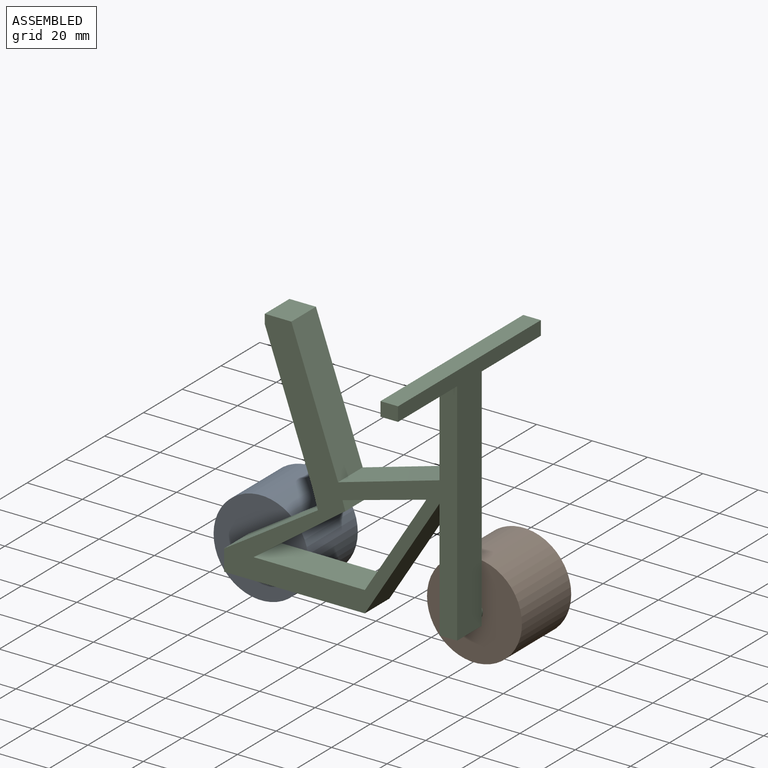
[diagram: assembled view]
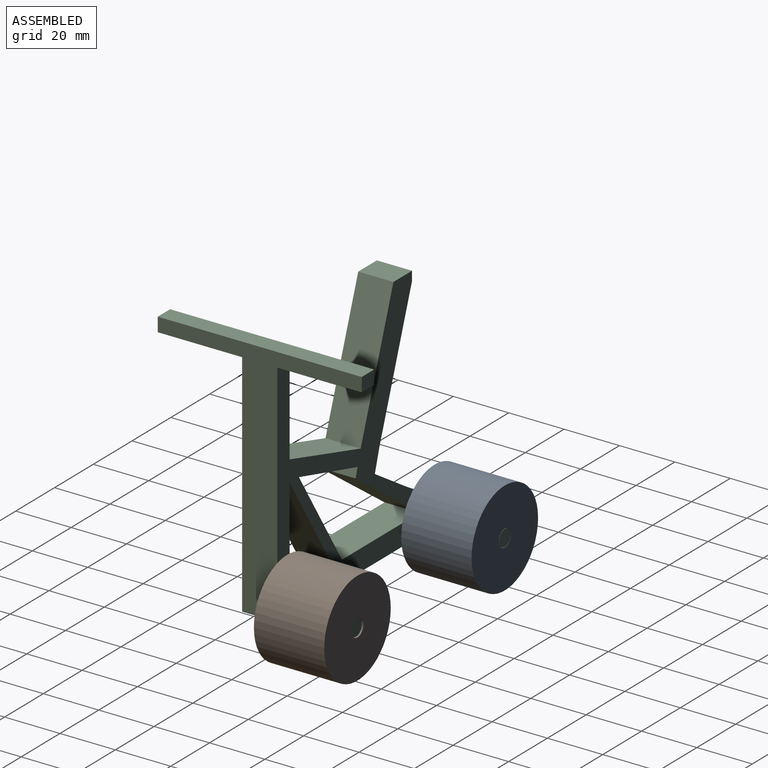
[diagram: assembled view, second angle]
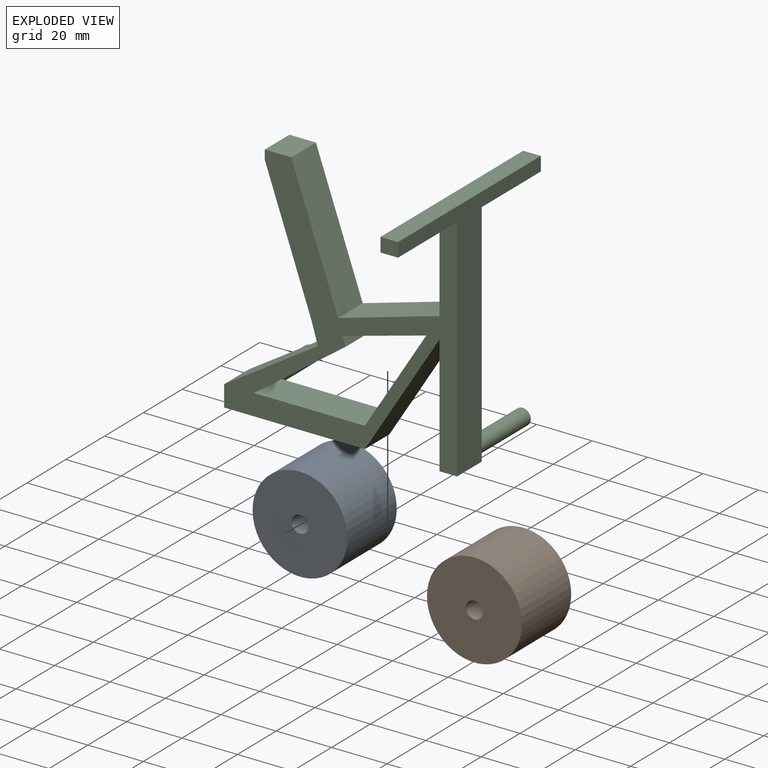
[diagram: exploded view]
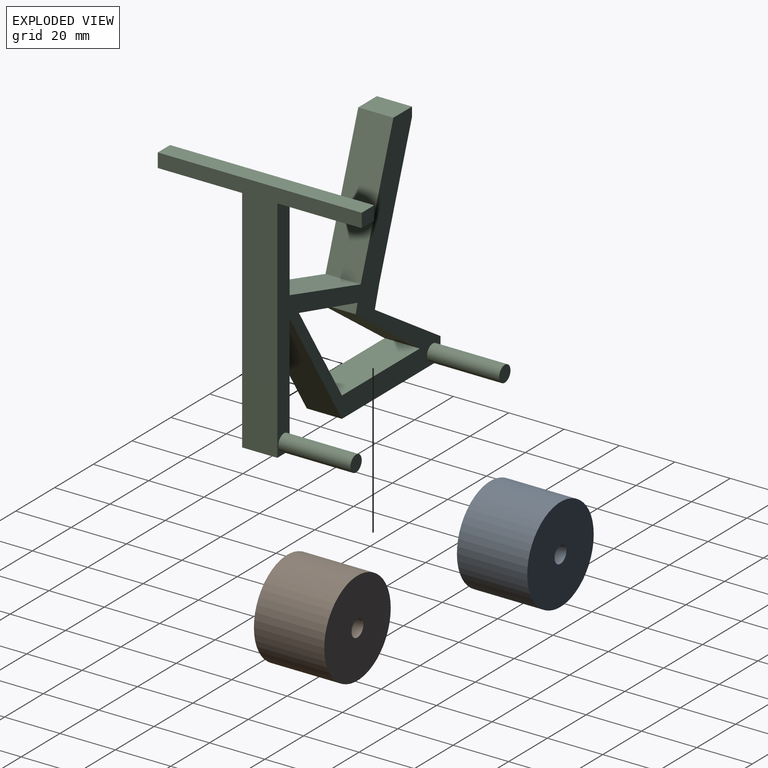
[diagram: exploded view, second angle]
ASSEMBLY  parts=3 mates=2
PART A: 4 faces, bbox 34.3x25.4x34.3 mm
  f0: cylinder r=3.05mm len=25.4mm, axis (0,1,0), area 486.4mm2, adj f2,f3
  f1: cylinder r=17.14mm len=34.29mm, axis (0,1,0), area 2736.2mm2, adj f2,f3
  f2: plane 34.29x34.29mm, normal (0,-1,0), area 894.3mm2, adj f0,f1
  f3: plane 34.29x34.29mm, normal (0,1,0), area 894.3mm2, adj f0,f1
PART B: same geometry as A
PART C: 30 faces, bbox 84.1x73.7x88.1 mm
  f0: plane 12.7x3.38mm, normal (0.96,0,0.28), area 44.8mm2, adj f1,f14,f15,f16
  f1: plane 30.26x12.7mm, normal (0.26,0,-0.97), area 398.3mm2, adj f0,f2,f15,f16
  f2: plane 35.42x22.21mm, normal (-0.85,0,0.53), area 530.9mm2, adj f1,f3,f15,f16
  f3: plane 40.13x12.7mm, normal (0,0,1), area 509.7mm2, adj f2,f14,f15,f16
  f4: plane 12.7x3.38mm, normal (-1,0,0), area 42.9mm2, adj f5,f13,f15,f16
  f5: plane 47.91x16.88mm, normal (-0.94,0,-0.33), area 645.2mm2, adj f4,f6,f15,f16
  f6: plane 12.7x7.73mm, normal (-0.96,0,-0.28), area 102.4mm2, adj f5,f7,f15,f16
  f7: plane 33.85x21.5mm, normal (-0.54,0,0.84), area 509.3mm2, adj f6,f8,f15,f16
  f8: plane 12.7x7.62mm, normal (-1,0,0), area 96.8mm2, adj f7,f9,f15,f16
  f9: plane 50.8x12.7mm, normal (0,0,-1), area 645.2mm2, adj f8,f10,f15,f16
  f10: plane 43.04x26.99mm, normal (0.85,0,-0.53), area 645.2mm2, adj f9,f15,f16,f26
  f11: plane 36.64x12.7mm, normal (-0.27,0,0.96), area 483.9mm2, adj f12,f15,f16,f23
  f12: plane 47.91x16.88mm, normal (0.94,0,0.33), area 645.2mm2, adj f11,f13,f15,f16
  f13: plane 12.7x9.58mm, normal (0,0,1), area 121.7mm2, adj f4,f12,f15,f16
  f14: plane 33.08x23.82mm, normal (0.58,0,-0.81), area 517.7mm2, adj f0,f3,f15,f16
  f15: plane 88.13x84.14mm, normal (0,-1,0), area 2137mm2, adj f0,f1,f2,f3,f4,f5,f6,f7
  f16: plane 88.13x84.14mm, normal (0,1,0), area 2083.4mm2, adj f0,f1,f2,f3,f4,f5,f6,f7
  f17: plane 30.48x6.35mm, normal (0,0,-1), area 193.5mm2, adj f16,f18,f22,f23
  f18: plane 6.35x5.08mm, normal (0,1,0), area 32.3mm2, adj f17,f19,f22,f23
  f19: plane 73.66x6.35mm, normal (0,0,1), area 467.7mm2, adj f18,f20,f22,f23
  f20: plane 6.35x5.08mm, normal (0,-1,0), area 32.3mm2, adj f19,f21,f22,f23
  f21: plane 30.48x6.35mm, normal (0,0,-1), area 193.5mm2, adj f15,f20,f22,f23
  f22: plane 88.13x73.66mm, normal (1,0,0), area 1429mm2, adj f15,f16,f17,f18,f19,f20,f21,f27
  f23: plane 73.66x37.48mm, normal (-1,0,0), area 785.6mm2, adj f11,f15,f16,f17,f18,f19,f20,f21
  f24: cylinder r=2.92mm len=26.04mm, axis (0,-1,0), area 477.8mm2, adj f16,f25
  f25: plane 5.84x5.84mm, normal (0,1,0), area 26.8mm2, adj f24
  f26: plane 43.04x12.7mm, normal (-1,0,0), area 546.6mm2, adj f10,f15,f16,f27
  f27: plane 12.7x6.35mm, normal (0,0,-1), area 80.6mm2, adj f15,f16,f22,f26
  f28: cylinder r=2.92mm len=26.04mm, axis (0,-1,0), area 477.8mm2, adj f16,f29
  f29: plane 5.84x5.84mm, normal (0,1,0), area 26.8mm2, adj f28
PLACE A t=(-13.11,33.45,17.98)mm
PLACE B t=(63.6,33.96,17.98)mm
PLACE C t=(-17.11,7.42,14.17)mm
MATE cylindrical A.f0 <-> C.f24  axis (0,1,0) through (-13.11,33.45,17.98)mm
MATE cylindrical C.f28 <-> B.f0  axis (0,1,0) through (63.6,33.45,17.98)mm
